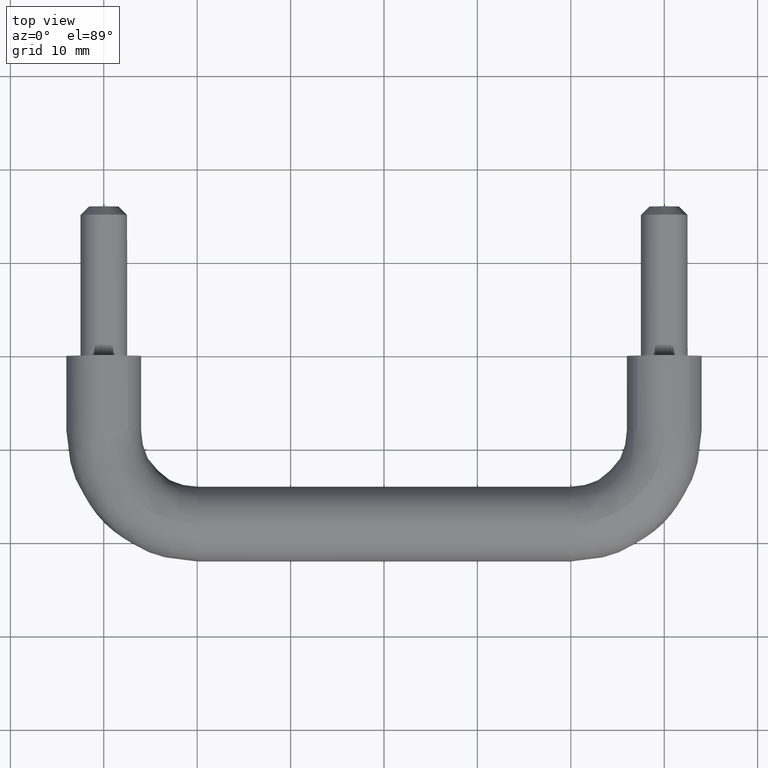
[diagram: clean part render]
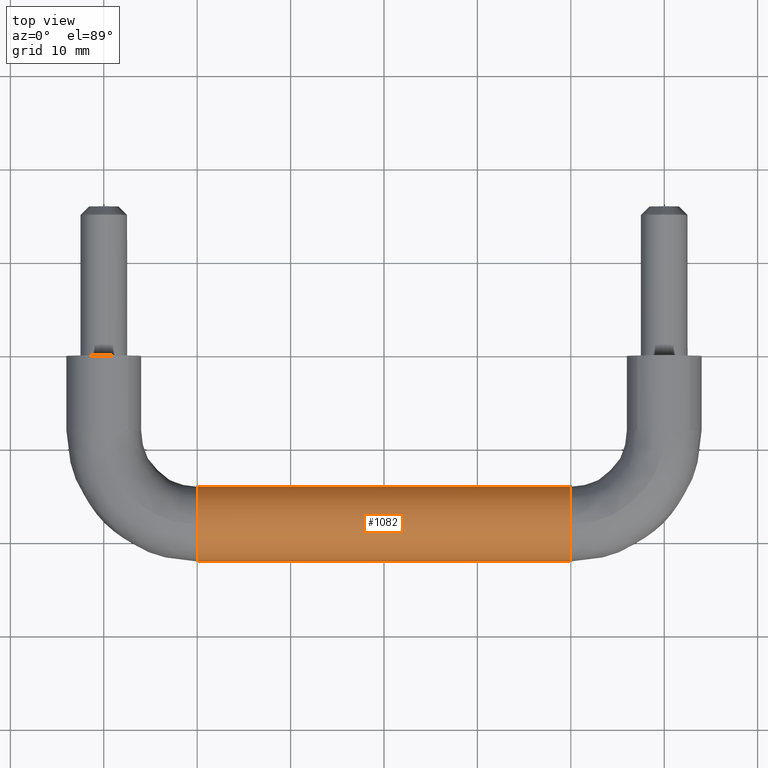
[diagram: same view with one face highlighted and labeled with its STEP entity id]
A machine part, top view. The second image highlights one B-rep face of the part: STEP entity #1082.
In plain terms, the highlighted face is a freeform B-spline surface patch.
Its self-contained STEP definition (entity closure, byte-faithful):
#920=CARTESIAN_POINT('',(8.999999999730878,-15.085145242384501,-2.739273944315588));
#921=CARTESIAN_POINT('',(8.999999999730877,-12.498302470239505,0.013379172849753));
#922=CARTESIAN_POINT('',(8.999999999730877,-15.098502515950850,2.753418302775015));
#923=CARTESIAN_POINT('',(8.999999999730877,-17.851920818725873,5.654915786824165));
#924=CARTESIAN_POINT('',(8.999999999730877,-20.753418302775010,2.901497484049150));
#925=CARTESIAN_POINT('',(8.999999999730877,-23.654915786824155,0.148079181274134));
#926=CARTESIAN_POINT('',(8.999999999730877,-20.901497484049148,-2.753418302775015));
#927=CARTESIAN_POINT('',(51.025000000731282,-15.085145242384492,-2.739273944315588));
#928=CARTESIAN_POINT('',(51.025000000731289,-12.498302470239500,0.013379172849753));
#929=CARTESIAN_POINT('',(51.025000000731282,-15.098502515950839,2.753418302775015));
#930=CARTESIAN_POINT('',(51.025000000731282,-17.851920818725858,5.654915786824165));
#931=CARTESIAN_POINT('',(51.025000000731282,-20.753418302775010,2.901497484049150));
#932=CARTESIAN_POINT('',(51.025000000731282,-23.654915786824155,0.148079181274134));
#933=CARTESIAN_POINT('',(51.025000000731282,-20.901497484049141,-2.753418302775015));
#941=(BOUNDED_SURFACE()B_SPLINE_SURFACE(2,1,((#920,#927),(#921,#928),(#922,#929),(#923,#930),(#924,#931),(#925,#932),(#926,#933)),.UNSPECIFIED.,.F.,.F.,.U.)B_SPLINE_SURFACE_WITH_KNOTS((3,2,2,3),(2,2),(0.0,6.362320318050738,12.989737316020260,19.617154313989779),(0.0,42.025000001000407),.UNSPECIFIED.)GEOMETRIC_REPRESENTATION_ITEM()RATIONAL_B_SPLINE_SURFACE(((0.977505800795127,0.977505800795127),(0.718822509939086,0.718822509939086),(1.0,1.0),(0.707106781186548,0.707106781186548),(1.0,1.0),(0.707106781186548,0.707106781186548),(1.0,1.0)))REPRESENTATION_ITEM('')SURFACE());
#942=CARTESIAN_POINT('',(50.000000000051983,-15.085144465333290,-2.739273117427020));
#943=VERTEX_POINT('',#942);
#944=CARTESIAN_POINT('',(50.0,-14.0,0.0));
#945=VERTEX_POINT('',#944);
#946=CARTESIAN_POINT('',(50.000000000051983,-15.085144465333292,-2.739273117427019));
#947=CARTESIAN_POINT('',(50.0,-13.999999999999998,-1.584572868463763));
#948=CARTESIAN_POINT('',(50.0,-14.0,0.0));
#956=(BOUNDED_CURVE()B_SPLINE_CURVE(2,(#946,#947,#948),.UNSPECIFIED.,.F.,.U.)B_SPLINE_CURVE_WITH_KNOTS((3,3),(0.379684533793850,0.500000000000000),.UNSPECIFIED.)CURVE()GEOMETRIC_REPRESENTATION_ITEM()RATIONAL_B_SPLINE_CURVE((0.853759070585715,0.859041663319358,1.0))REPRESENTATION_ITEM(''));
#957=EDGE_CURVE('',#943,#945,#956,.T.);
#958=ORIENTED_EDGE('',*,*,#957,.F.);
#959=CARTESIAN_POINT('',(9.999999999928459,-15.085144783316510,-2.739273455781886));
#960=VERTEX_POINT('',#959);
#961=CARTESIAN_POINT('',(9.999999999928459,-15.085144783316510,-2.739273455781886));
#962=CARTESIAN_POINT('',(50.000000000051983,-15.085144465333290,-2.739273117427020));
#963=QUASI_UNIFORM_CURVE('',1,(#961,#962),.UNSPECIFIED.,.F.,.U.);
#964=EDGE_CURVE('',#960,#943,#963,.T.);
#965=ORIENTED_EDGE('',*,*,#964,.F.);
#966=CARTESIAN_POINT('',(10.0,-14.0,0.0));
#967=VERTEX_POINT('',#966);
#968=CARTESIAN_POINT('',(9.999999999928459,-15.085144783316512,-2.739273455781886));
#969=CARTESIAN_POINT('',(10.0,-14.000000000000004,-1.584572749257046));
#970=CARTESIAN_POINT('',(10.0,-14.0,0.0));
#978=(BOUNDED_CURVE()B_SPLINE_CURVE(2,(#968,#969,#970),.UNSPECIFIED.,.F.,.U.)B_SPLINE_CURVE_WITH_KNOTS((3,3),(0.379684541569276,0.500000000000000),.UNSPECIFIED.)CURVE()GEOMETRIC_REPRESENTATION_ITEM()RATIONAL_B_SPLINE_CURVE((0.853759071268494,0.859041672428836,1.0))REPRESENTATION_ITEM(''));
#979=EDGE_CURVE('',#960,#967,#978,.T.);
#980=ORIENTED_EDGE('',*,*,#979,.T.);
#981=CARTESIAN_POINT('',(9.999999999977183,-18.050264159744199,3.999684176812615));
#982=VERTEX_POINT('',#981);
#983=CARTESIAN_POINT('',(10.0,-14.0,0.0));
#984=CARTESIAN_POINT('',(10.000000000000002,-13.999999999999998,4.000000000000000));
#985=CARTESIAN_POINT('',(10.0,-18.0,4.0));
#986=CARTESIAN_POINT('',(10.0,-18.025133072178356,4.0));
#987=CARTESIAN_POINT('',(9.999999999977183,-18.050264159744195,3.999684176812615));
#995=(BOUNDED_CURVE()B_SPLINE_CURVE(2,(#983,#984,#985,#986,#987),.UNSPECIFIED.,.F.,.U.)B_SPLINE_CURVE_WITH_KNOTS((3,2,3),(0.500000000000000,0.750000000000000,0.752215704096808),.UNSPECIFIED.)CURVE()GEOMETRIC_REPRESENTATION_ITEM()RATIONAL_B_SPLINE_CURVE((1.0,0.707106781186548,1.0,0.997404141180592,0.994854295601350))REPRESENTATION_ITEM(''));
#996=EDGE_CURVE('',#967,#982,#995,.T.);
#997=ORIENTED_EDGE('',*,*,#996,.T.);
#998=CARTESIAN_POINT('',(10.0,-22.0,0.0));
#999=VERTEX_POINT('',#998);
#1000=CARTESIAN_POINT('',(9.999999999977183,-18.050264159744192,3.999684176812615));
#1001=CARTESIAN_POINT('',(10.0,-22.0,3.950047719212881));
#1002=CARTESIAN_POINT('',(10.0,-22.0,0.0));
#1010=(BOUNDED_CURVE()B_SPLINE_CURVE(2,(#1000,#1001,#1002),.UNSPECIFIED.,.F.,.U.)B_SPLINE_CURVE_WITH_KNOTS((3,3),(0.752215704096809,1.0),.UNSPECIFIED.)CURVE()GEOMETRIC_REPRESENTATION_ITEM()RATIONAL_B_SPLINE_CURVE((0.994854295601348,0.709702640005957,1.0))REPRESENTATION_ITEM(''));
#1011=EDGE_CURVE('',#982,#999,#1010,.T.);
#1012=ORIENTED_EDGE('',*,*,#1011,.T.);
#1013=CARTESIAN_POINT('',(10.0,-20.901498075328391,-2.753417679696430));
#1014=VERTEX_POINT('',#1013);
#1015=CARTESIAN_POINT('',(10.0,-22.0,0.0));
#1016=CARTESIAN_POINT('',(10.000000000000002,-22.0,-1.595837188198000));
#1017=CARTESIAN_POINT('',(10.0,-20.901498075328391,-2.753417679696430));
#1025=(BOUNDED_CURVE()B_SPLINE_CURVE(2,(#1015,#1016,#1017),.UNSPECIFIED.,.F.,.U.)B_SPLINE_CURVE_WITH_KNOTS((3,3),(0.0,0.121049461843310),.UNSPECIFIED.)CURVE()GEOMETRIC_REPRESENTATION_ITEM()RATIONAL_B_SPLINE_CURVE((1.0,0.858181733940307,0.853699666169231))REPRESENTATION_ITEM(''));
#1026=EDGE_CURVE('',#999,#1014,#1025,.T.);
#1027=ORIENTED_EDGE('',*,*,#1026,.T.);
#1028=CARTESIAN_POINT('',(50.000000000000007,-20.901498082715289,-2.753417671912254));
#1029=VERTEX_POINT('',#1028);
#1030=CARTESIAN_POINT('',(10.0,-20.901498075328391,-2.753417679696430));
#1031=CARTESIAN_POINT('',(50.000000000000007,-20.901498082715289,-2.753417671912254));
#1032=QUASI_UNIFORM_CURVE('',1,(#1030,#1031),.UNSPECIFIED.,.F.,.U.);
#1033=EDGE_CURVE('',#1014,#1029,#1032,.T.);
#1034=ORIENTED_EDGE('',*,*,#1033,.T.);
#1035=CARTESIAN_POINT('',(50.0,-22.0,0.0));
#1036=VERTEX_POINT('',#1035);
#1037=CARTESIAN_POINT('',(50.0,-22.0,0.0));
#1038=CARTESIAN_POINT('',(49.999999999999986,-22.0,-1.595837175758675));
#1039=CARTESIAN_POINT('',(50.000000000000007,-20.901498082715289,-2.753417671912254));
#1047=(BOUNDED_CURVE()B_SPLINE_CURVE(2,(#1037,#1038,#1039),.UNSPECIFIED.,.F.,.U.)B_SPLINE_CURVE_WITH_KNOTS((3,3),(0.0,0.121049461033561),.UNSPECIFIED.)CURVE()GEOMETRIC_REPRESENTATION_ITEM()RATIONAL_B_SPLINE_CURVE((1.0,0.858181734888987,0.853699666229196))REPRESENTATION_ITEM(''));
#1048=EDGE_CURVE('',#1036,#1029,#1047,.T.);
#1049=ORIENTED_EDGE('',*,*,#1048,.F.);
#1050=CARTESIAN_POINT('',(50.000000000706883,-18.100520384777500,3.998736757057681));
#1051=VERTEX_POINT('',#1050);
#1052=CARTESIAN_POINT('',(50.000000000706876,-18.100520384777496,3.998736757057681));
#1053=CARTESIAN_POINT('',(49.999999999999993,-21.999999999999996,3.900711498859729));
#1054=CARTESIAN_POINT('',(50.0,-22.0,0.0));
#1062=(BOUNDED_CURVE()B_SPLINE_CURVE(2,(#1052,#1053,#1054),.UNSPECIFIED.,.F.,.U.)B_SPLINE_CURVE_WITH_KNOTS((3,3),(0.754420108493106,1.0),.UNSPECIFIED.)CURVE()GEOMETRIC_REPRESENTATION_ITEM()RATIONAL_B_SPLINE_CURVE((0.989826157087315,0.712285260402750,1.0))REPRESENTATION_ITEM(''));
#1063=EDGE_CURVE('',#1051,#1036,#1062,.T.);
#1064=ORIENTED_EDGE('',*,*,#1063,.F.);
#1065=CARTESIAN_POINT('',(50.0,-14.0,0.0));
#1066=CARTESIAN_POINT('',(50.0,-13.999999999999998,4.000000000000000));
#1067=CARTESIAN_POINT('',(50.0,-18.0,4.0));
#1068=CARTESIAN_POINT('',(49.999999999999993,-18.050268131499084,4.000000000000001));
#1069=CARTESIAN_POINT('',(50.000000000706883,-18.100520384777493,3.998736757057680));
#1077=(BOUNDED_CURVE()B_SPLINE_CURVE(2,(#1065,#1066,#1067,#1068,#1069),.UNSPECIFIED.,.F.,.U.)B_SPLINE_CURVE_WITH_KNOTS((3,2,3),(0.500000000000000,0.750000000000000,0.754420108493105),.UNSPECIFIED.)CURVE()GEOMETRIC_REPRESENTATION_ITEM()RATIONAL_B_SPLINE_CURVE((1.0,0.707106781186548,1.0,0.994821520783799,0.989826157087317))REPRESENTATION_ITEM(''));
#1078=EDGE_CURVE('',#945,#1051,#1077,.T.);
#1079=ORIENTED_EDGE('',*,*,#1078,.F.);
#1080=EDGE_LOOP('',(#958,#965,#980,#997,#1012,#1027,#1034,#1049,#1064,#1079));
#1081=FACE_OUTER_BOUND('',#1080,.T.);
#1082=ADVANCED_FACE('',(#1081),#941,.T.);